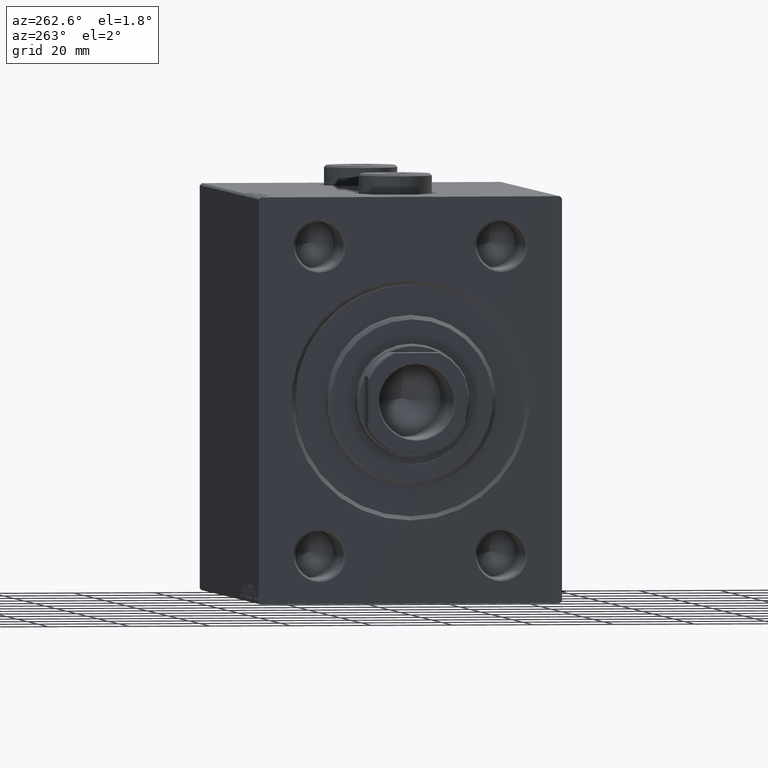
[diagram: clean part render]
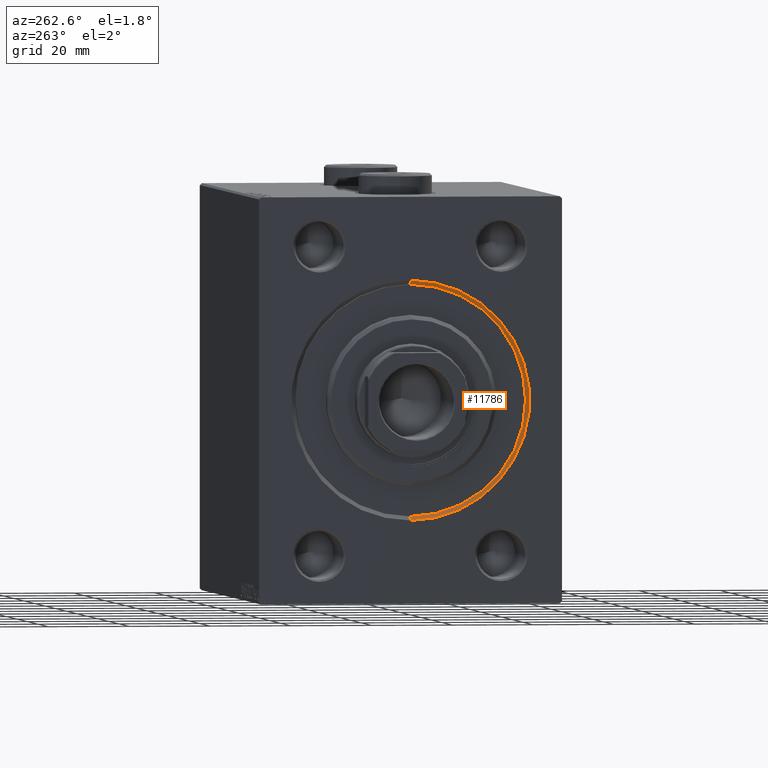
[diagram: same view with one face highlighted and labeled with its STEP entity id]
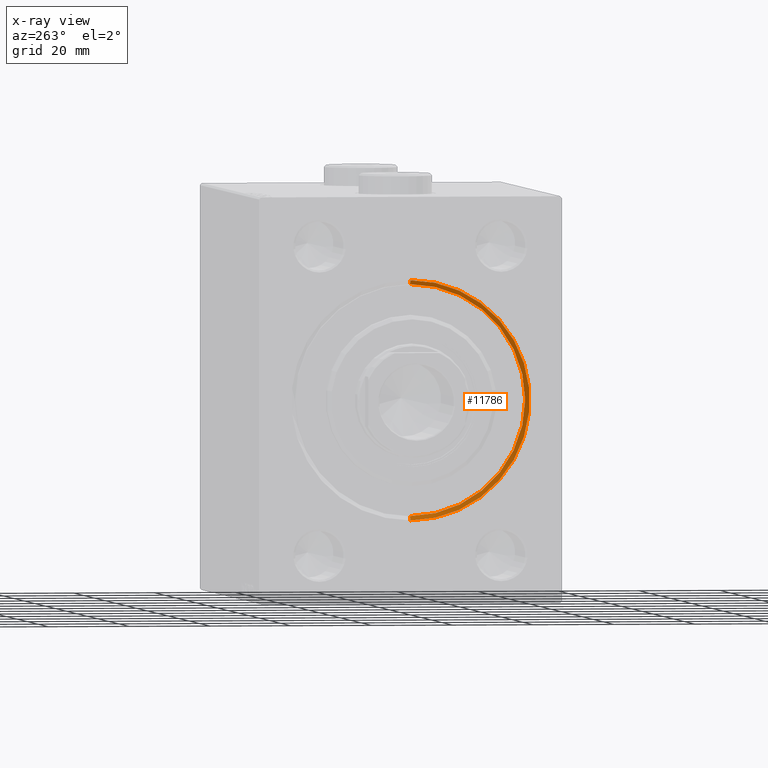
[diagram: x-ray of the same camera — body ghosted, the highlighted face saturated]
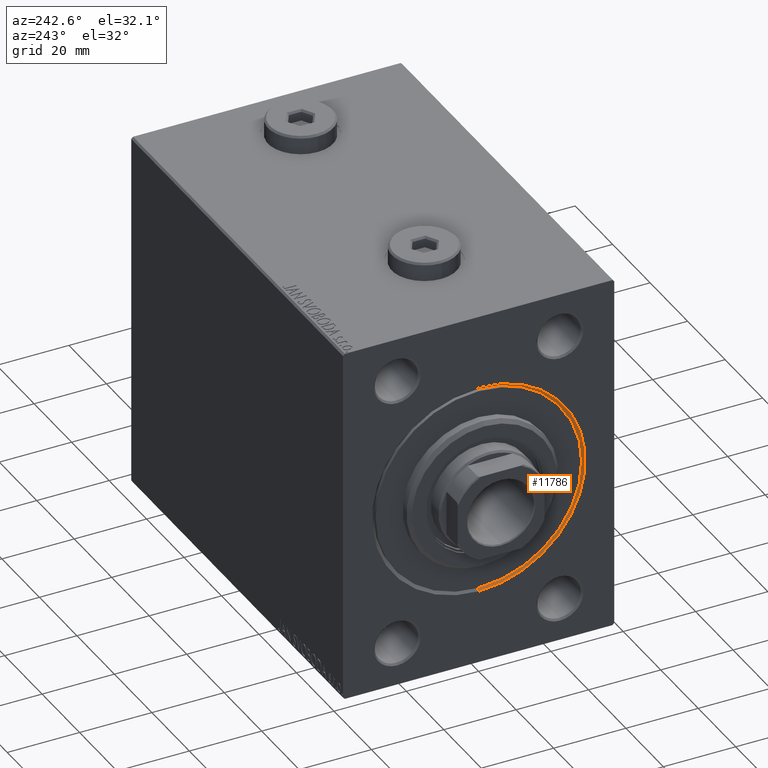
[diagram: same view with one face highlighted and labeled with its STEP entity id]
A machine part, auxiliary view. The second image highlights one B-rep face of the part: STEP entity #11786.
The next image is the same camera in x-ray: the body ghosted, the highlighted face saturated — about 0% of this face is hidden behind the body in this view.
A second angle (auxiliary view) of the same face is appended — the face is thin or edge-on in the first view.
In plain terms, the highlighted conical surface has half-angle 45 deg.
Its self-contained STEP definition (entity closure, byte-faithful):
#1433 = CARTESIAN_POINT ( 'NONE',  ( 0.000000000000000000, 0.000000000000000000, 0.000000000000000000 ) ) ;
#2097 = CARTESIAN_POINT ( 'NONE',  ( 0.9999999999999904521, 0.000000000000000000, 28.50000000000000000 ) ) ;
#3504 = VECTOR ( 'NONE', #27421, 1000.000000000000000 ) ;
#5626 = CARTESIAN_POINT ( 'NONE',  ( 0.9999999999999904521, 0.000000000000000000, 0.000000000000000000 ) ) ;
#5885 = VERTEX_POINT ( 'NONE', #33715 ) ;
#9241 = AXIS2_PLACEMENT_3D ( 'NONE', #24491, #35123, #17095 ) ;
#9866 = VECTOR ( 'NONE', #16192, 1000.000000000000000 ) ;
#11070 = VERTEX_POINT ( 'NONE', #31934 ) ;
#11786 = ADVANCED_FACE ( 'NONE', ( #25338 ), #32863, .F. ) ;
#12894 = ORIENTED_EDGE ( 'NONE', *, *, #28987, .F. ) ;
#15522 = DIRECTION ( 'NONE',  ( 1.000000000000000000, 0.000000000000000000, 0.000000000000000000 ) ) ;
#15798 = DIRECTION ( 'NONE',  ( 0.000000000000000000, 0.000000000000000000, -1.000000000000000000 ) ) ;
#16192 = DIRECTION ( 'NONE',  ( -0.7071067811865389130, 0.000000000000000000, 0.7071067811865561215 ) ) ;
#17095 = DIRECTION ( 'NONE',  ( 0.000000000000000000, 0.000000000000000000, 1.000000000000000000 ) ) ;
#17167 = CARTESIAN_POINT ( 'NONE',  ( 0.000000000000000000, 0.000000000000000000, 29.50000000000001421 ) ) ;
#17278 = VERTEX_POINT ( 'NONE', #17167 ) ;
#22608 = AXIS2_PLACEMENT_3D ( 'NONE', #1433, #15522, #40487 ) ;
#23054 = EDGE_LOOP ( 'NONE', ( #32540, #37104, #28347, #12894 ) ) ;
#24491 = CARTESIAN_POINT ( 'NONE',  ( 0.9999999999999904521, 0.000000000000000000, 0.000000000000000000 ) ) ;
#25338 = FACE_OUTER_BOUND ( 'NONE', #23054, .T. ) ;
#27040 = CIRCLE ( 'NONE', #32936, 28.50000000000000000 ) ;
#27421 = DIRECTION ( 'NONE',  ( -0.7071067811865389130, 8.659560562355038861E-17, -0.7071067811865561215 ) ) ;
#28347 = ORIENTED_EDGE ( 'NONE', *, *, #39848, .F. ) ;
#28987 = EDGE_CURVE ( 'NONE', #5885, #17278, #37224, .T. ) ;
#31934 = CARTESIAN_POINT ( 'NONE',  ( 0.9999999999999904521, 3.490243377569956456E-15, -28.50000000000000000 ) ) ;
#32540 = ORIENTED_EDGE ( 'NONE', *, *, #36304, .F. ) ;
#32863 = CONICAL_SURFACE ( 'NONE', #9241, 28.50000000000000000, 0.7853981633974604915 ) ;
#32936 = AXIS2_PLACEMENT_3D ( 'NONE', #5626, #33367, #15798 ) ;
#33367 = DIRECTION ( 'NONE',  ( -1.000000000000000000, 0.000000000000000000, 0.000000000000000000 ) ) ;
#33442 = LINE ( 'NONE', #40833, #3504 ) ;
#33715 = CARTESIAN_POINT ( 'NONE',  ( 0.9999999999999904521, 0.000000000000000000, 28.50000000000000000 ) ) ;
#35123 = DIRECTION ( 'NONE',  ( -1.000000000000000000, 0.000000000000000000, 0.000000000000000000 ) ) ;
#36304 = EDGE_CURVE ( 'NONE', #11070, #5885, #27040, .T. ) ;
#37104 = ORIENTED_EDGE ( 'NONE', *, *, #42996, .T. ) ;
#37224 = LINE ( 'NONE', #2097, #9866 ) ;
#39848 = EDGE_CURVE ( 'NONE', #17278, #43527, #45508, .T. ) ;
#40487 = DIRECTION ( 'NONE',  ( 0.000000000000000000, 0.000000000000000000, -1.000000000000000000 ) ) ;
#40833 = CARTESIAN_POINT ( 'NONE',  ( 0.9999999999999904521, 3.490243377569956456E-15, -28.50000000000000000 ) ) ;
#42996 = EDGE_CURVE ( 'NONE', #11070, #43527, #33442, .T. ) ;
#43281 = CARTESIAN_POINT ( 'NONE',  ( 0.000000000000000000, 3.612708057484693970E-15, -29.50000000000001421 ) ) ;
#43527 = VERTEX_POINT ( 'NONE', #43281 ) ;
#45508 = CIRCLE ( 'NONE', #22608, 29.50000000000001421 ) ;